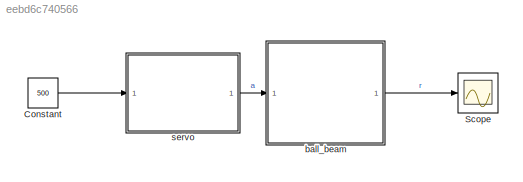
MODEL slx_eebd6c740566
KIND model
CONFIG AbsTol = auto
CONFIG EnableMultiTasking = off
CONFIG FixedStep = auto
CONFIG MaxStep = 1e-3
CONFIG MinStep = auto
CONFIG RelTol = 1e-3
CONFIG SampleTimeConstraint = Unconstrained
CONFIG Solver = VariableStepAuto
CONFIG SolverName = VariableStepAuto
CONFIG StartTime = 0.0
CONFIG StopTime = 10
BLOCK [Constant] Constant
  Value = 500
BLOCK [Scope] Scope
  Floating = off
  NumInputPorts = 1
  Ports = [1]
  ScopeSpecificationString = Simulink.scopes.TimeScopeBlockCfg('CurrentConfiguration', extmgr.ConfigurationSet(extmgr.Configuration('Core','General UI',true),extmgr.Configuration('Core','Source UI',true),extmgr.Configuration('Sources','WiredSimulink',true),extmgr.Configuration('Visuals','Time Domain',true,'SerializedDisplays',{struct('MinYLimReal','-46.98685','MaxYLimReal','5.22076','YLabelReal','position(m)','MinYLimMag','0....<+1577ch>
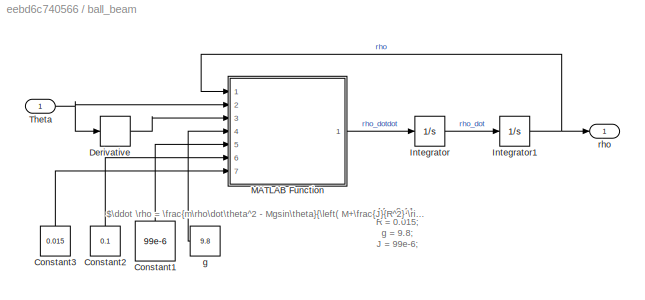
BLOCK [SubSystem] ball_beam
  Ports = [1, 1]
  RequestExecContextInheritance = off
BLOCK [Constant] ball_beam/Constant1
  Value = 99e-6
BLOCK [Constant] ball_beam/Constant2
  Value = 0.1
BLOCK [Constant] ball_beam/Constant3
  Value = 0.015
BLOCK [Derivative] ball_beam/Derivative
BLOCK [Integrator] ball_beam/Integrator
  Ports = [1, 1]
BLOCK [Integrator] ball_beam/Integrator1
  Ports = [1, 1]
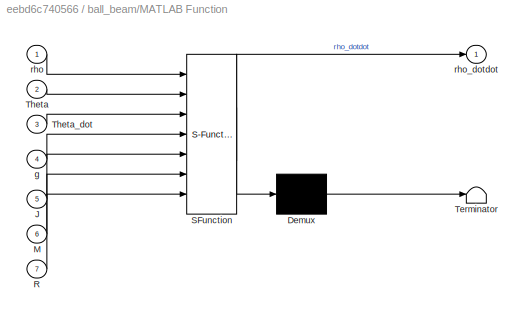
BLOCK [SubSystem] ball_beam/MATLAB Function
  ErrorFcn = Stateflow.Translate.translate
  PermitHierarchicalResolution = ExplicitOnly
  Ports = [7, 1]
  RequestExecContextInheritance = off
  SFBlockType = MATLAB Function
  TreatAsAtomicUnit = on
BLOCK [Demux] ball_beam/MATLAB Function/ Demux 
  Outputs = 1
  Ports = [1, 1]
BLOCK [S-Function] ball_beam/MATLAB Function/ SFunction 
  EnableBusSupport = on
  FunctionName = sf_sfun
  PortCounts = [7 2]
  Ports = [7, 2]
  SFcnIsStateOwnerBlock = off
  SFunctionDeploymentMode = off
  Tag = Stateflow S-Function bnopid 2
BLOCK [Terminator] ball_beam/MATLAB Function/ Terminator 
BLOCK [Inport] ball_beam/MATLAB Function/J
  IconDisplay = Port number
  Port = 5
BLOCK [Inport] ball_beam/MATLAB Function/M
  IconDisplay = Port number
  Port = 6
BLOCK [Inport] ball_beam/MATLAB Function/R
  IconDisplay = Port number
  Port = 7
BLOCK [Inport] ball_beam/MATLAB Function/Theta
  IconDisplay = Port number
  Port = 2
BLOCK [Inport] ball_beam/MATLAB Function/Theta_dot
  IconDisplay = Port number
  Port = 3
BLOCK [Inport] ball_beam/MATLAB Function/g
  IconDisplay = Port number
  Port = 4
BLOCK [Inport] ball_beam/MATLAB Function/rho
  IconDisplay = Port number
BLOCK [Outport] ball_beam/MATLAB Function/rho_dotdot
  IconDisplay = Port number
BLOCK [Inport] ball_beam/Theta
  IconDisplay = Port number
BLOCK [Constant] ball_beam/g
  Value = 9.8
BLOCK [Outport] ball_beam/rho
  IconDisplay = Port number
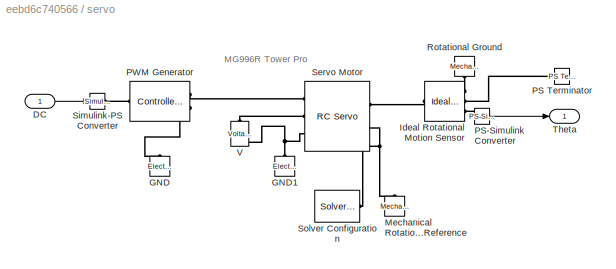
BLOCK [SubSystem] servo
  Ports = [1, 1]
  RequestExecContextInheritance = off
BLOCK [Inport] servo/DC
  IconDisplay = Port number
BLOCK [Reference] servo/GND  REF=fl_lib/Electrical/Electrical Elements/Electrical Reference
  Ports = [0, 0, 0, 0, 0, 1]
  SourceBlock = fl_lib/Electrical/Electrical Elements/Electrical Reference
  SourceProductBaseCode = SS
  SourceProductName = Simscape
  SourceType = Electrical Reference
BLOCK [Reference] servo/GND1  REF=fl_lib/Electrical/Electrical Elements/Electrical Reference
  Ports = [0, 0, 0, 0, 0, 1]
  SourceBlock = fl_lib/Electrical/Electrical Elements/Electrical Reference
  SourceProductBaseCode = SS
  SourceProductName = Simscape
  SourceType = Electrical Reference
BLOCK [Reference] servo/Ideal Rotational Motion Sensor  REF=fl_lib/Mechanical/Mechanical Sensors/Ideal Rotational
Motion Sensor
  Ports = [0, 0, 0, 0, 0, 1, 3]
  SourceBlock = fl_lib/Mechanical/Mechanical Sensors/Ideal Rotational\nMotion Sensor
  SourceProductBaseCode = SS
  SourceProductName = Simscape
  SourceType = Ideal Rotational\nMotion Sensor
BLOCK [Reference] servo/Mechanical Rotational Reference  REF=fl_lib/Mechanical/Rotational Elements/Mechanical
Rotational Reference
  Ports = [0, 0, 0, 0, 0, 1]
  SourceBlock = fl_lib/Mechanical/Rotational Elements/Mechanical\nRotational Reference
  SourceProductBaseCode = SS
  SourceProductName = Simscape
  SourceType = Mechanical\nRotational Reference
BLOCK [Reference] servo/PS Terminator  REF=fl_lib/Physical Signals/Sinks/PS Terminator
  Ports = [0, 0, 0, 0, 0, 1]
  SourceBlock = fl_lib/Physical Signals/Sinks/PS Terminator
  SourceProductBaseCode = SS
  SourceProductName = Simscape
  SourceType = PS Terminator
BLOCK [Reference] servo/PS-Simulink Converter  REF=nesl_utility/PS-Simulink
Converter
  Ports = [0, 1, 0, 0, 0, 1]
  SourceBlock = nesl_utility/PS-Simulink\nConverter
  SourceProductBaseCode = SS
  SourceProductName = Simscape
  SourceType = PS-Simulink\nConverter
BLOCK [Reference] servo/PWM Generator  REF=ee_lib/Integrated Circuits/Controlled PWM
Voltage
  Ports = [0, 0, 0, 0, 0, 1, 2]
  SourceBlock = ee_lib/Integrated Circuits/Controlled PWM\nVoltage
  SourceProductBaseCode = PS
  SourceProductName = Simscape Electrical
  SourceType = Controlled PWM\nVoltage
BLOCK [Reference] servo/Rotational Ground  REF=fl_lib/Mechanical/Rotational Elements/Mechanical
Rotational Reference
  Ports = [0, 0, 0, 0, 0, 1]
  SourceBlock = fl_lib/Mechanical/Rotational Elements/Mechanical\nRotational Reference
  SourceProductBaseCode = SS
  SourceProductName = Simscape
  SourceType = Mechanical\nRotational Reference
BLOCK [Reference] servo/Servo Motor  REF=ee_lib/Electromechanical/Brushed Motors/RC Servo
  Ports = [0, 0, 0, 0, 0, 3, 2]
  SourceBlock = ee_lib/Electromechanical/Brushed Motors/RC Servo
  SourceProductBaseCode = PS
  SourceProductName = Simscape Electrical
  SourceType = RC Servo
BLOCK [Reference] servo/Simulink-PS Converter  REF=nesl_utility/Simulink-PS
Converter
  Ports = [1, 0, 0, 0, 0, 0, 1]
  SourceBlock = nesl_utility/Simulink-PS\nConverter
  SourceProductBaseCode = SS
  SourceProductName = Simscape
  SourceType = Simulink-PS\nConverter
BLOCK [Reference] servo/Solver Configuration  REF=nesl_utility/Solver
Configuration
  Ports = [0, 0, 0, 0, 0, 0, 1]
  SourceBlock = nesl_utility/Solver\nConfiguration
  SourceProductBaseCode = SS
  SourceProductName = Simscape
  SourceType = Solver\nConfiguration
BLOCK [Outport] servo/Theta
  IconDisplay = Port number
BLOCK [Reference] servo/V  REF=ee_lib/Sources/Voltage Source
  Ports = [0, 0, 0, 0, 0, 1, 1]
  SourceBlock = ee_lib/Sources/Voltage Source
  SourceProductBaseCode = PS
  SourceProductName = Simscape Electrical
  SourceType = Voltage Source
ANNOTATION ball_beam: $\ddot \rho = \frac{m\rho\dot\theta^2 - Mgsin\theta}{\left( M+\frac{J}{R^2} \right)}$
ANNOTATION ball_beam: M = 0.11; R = 0.015; g = 9.8; J = 99e-6;
ANNOTATION servo: MG996R Tower Pro
LINE Constant:1 -> servo:1
LINE ball_beam/Constant1:1 -> ball_beam/MATLAB Function:5
LINE ball_beam/Constant2:1 -> ball_beam/MATLAB Function:6
LINE ball_beam/Constant3:1 -> ball_beam/MATLAB Function:7
LINE ball_beam/Derivative:1 -> ball_beam/MATLAB Function:3
NET ball_beam/Integrator1:1 -> ball_beam/MATLAB Function:1, ball_beam/rho:1
LINE ball_beam/Integrator:1 -> ball_beam/Integrator1:1
LINE ball_beam/MATLAB Function:1 -> ball_beam/Integrator:1
NET ball_beam/Theta:1 -> ball_beam/Derivative:1, ball_beam/MATLAB Function:2
LINE ball_beam/g:1 -> ball_beam/MATLAB Function:4
LINE ball_beam:1 -> Scope:1
LINE servo/DC:1 -> servo/Simulink-PS Converter:1
LINE servo/PS-Simulink Converter:1 -> servo/Theta:1
LINE servo:1 -> ball_beam:1
PNET net1: servo/GND1:LConn1 -- servo/Servo Motor:LConn3 -- servo/V:RConn1
PLINE servo/GND:LConn1 -- servo/PWM Generator:RConn2
PLINE servo/Ideal Rotational Motion Sensor:LConn1 -- servo/Servo Motor:RConn1
PLINE servo/Ideal Rotational Motion Sensor:RConn1 -- servo/Rotational Ground:LConn1
PLINE servo/Ideal Rotational Motion Sensor:RConn2 -- servo/PS Terminator:LConn1
PLINE servo/Ideal Rotational Motion Sensor:RConn3 -- servo/PS-Simulink Converter:LConn1
PNET net2: servo/Mechanical Rotational Reference:LConn1 -- servo/Servo Motor:RConn2 -- servo/Solver Configuration:RConn1
PLINE servo/PWM Generator:LConn1 -- servo/Simulink-PS Converter:RConn1
PLINE servo/PWM Generator:RConn1 -- servo/Servo Motor:LConn1
PLINE servo/Servo Motor:LConn2 -- servo/V:LConn1
note: NET lines group one-source signal fan-out (src -> all destinations, sorted); 1:1 wires keep LINE; PNET lines group multi-terminal physical nets as a canonical sorted terminal list (undirected conserving connections); 2-terminal nets keep the pairwise PLINE form
CHART ball_beam/MATLAB Function states=1 transitions=1
  STATE_LABEL 'eML_blk_kernel()'
  STATE_LABEL 'SCRIPT:\nfunction rho_dotdot = fcn(rho, Theta, Theta_dot, g, J, M, R)\n\nrho_dotdot = ((M*g*sin(Theta))) - (M*rho*Theta_dot^2) / ...\n        ((J/(R^2)) + M);'
